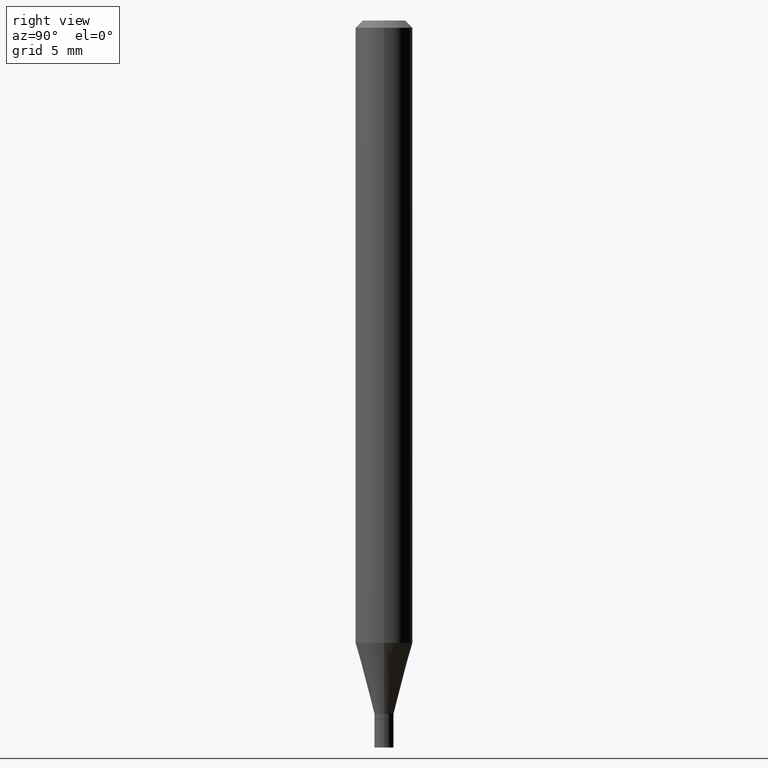
[diagram: clean part render]
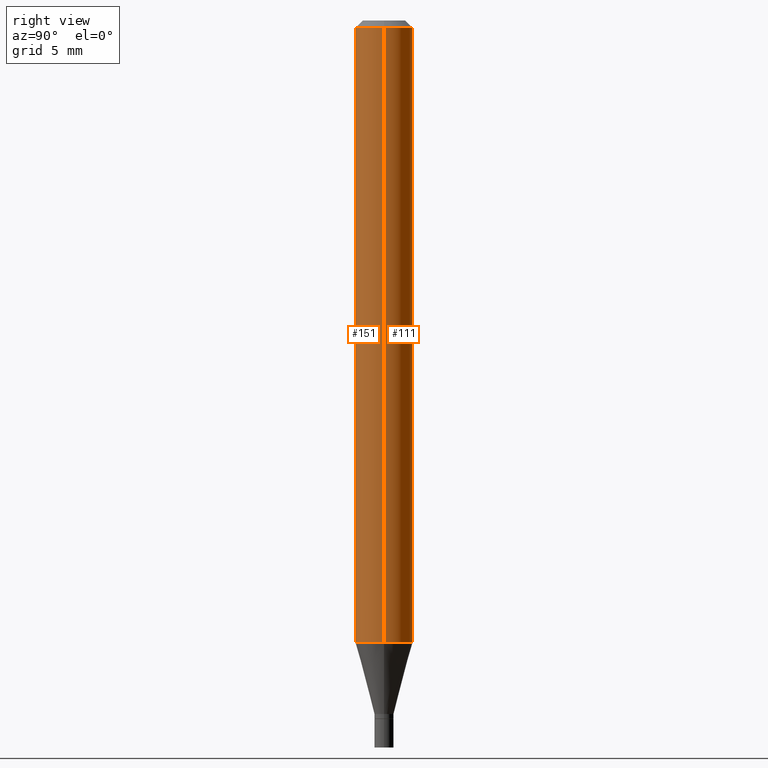
[diagram: same view with one multi-face feature highlighted, each face labeled with its STEP entity id]
A machine part, right view. The highlighted faces form ONE feature: a constant-radius fillet chain: 2 tangent blend faces with common blend radius 1.4999 mm. The faces share edges in the B-rep.
Their STEP definitions:
[1] entity #111 (Cylinder):
#26 = VERTEX_POINT ( 'NONE', #145 ) ;
#39 = EDGE_CURVE ( 'NONE', #431, #216, #379, .T. ) ;
#41 = DIRECTION ( 'NONE',  ( 1.000000000000000000, -6.982962677686273021E-15, 0.000000000000000000 ) ) ;
#60 = ORIENTED_EDGE ( 'NONE', *, *, #39, .T. ) ;
#62 = CARTESIAN_POINT ( 'NONE',  ( -0.05904999999999999832, -4.063639483012322948E-15, -1.284043800722163953 ) ) ;
#63 = CARTESIAN_POINT ( 'NONE',  ( 0.05904999999999999832, -4.895558914596035784E-15, -1.284043800722163953 ) ) ;
#71 = ORIENTED_EDGE ( 'NONE', *, *, #260, .T. ) ;
#72 = DIRECTION ( 'NONE',  ( -2.445468806185136877E-29, 3.491481338843145188E-15, 1.000000000000000000 ) ) ;
#97 = ORIENTED_EDGE ( 'NONE', *, *, #269, .F. ) ;
#105 = ORIENTED_EDGE ( 'NONE', *, *, #425, .F. ) ;
#111 = ADVANCED_FACE ( 'NONE', ( #441 ), #186, .T. ) ;
#116 = CARTESIAN_POINT ( 'NONE',  ( 0.000000000000000000, 0.000000000000000000, 0.000000000000000000 ) ) ;
#137 = VERTEX_POINT ( 'NONE', #257 ) ;
#145 = CARTESIAN_POINT ( 'NONE',  ( -0.05904999999999999832, -1.848218108814315465E-15, -0.01499999999999999944 ) ) ;
#170 = AXIS2_PLACEMENT_3D ( 'NONE', #222, #327, #41 ) ;
#184 = DIRECTION ( 'NONE',  ( -2.445468806185136597E-29, 3.491481338843145583E-15, 1.000000000000000000 ) ) ;
#186 = CYLINDRICAL_SURFACE ( 'NONE', #437, 0.05904999999999999832 ) ;
#195 = CARTESIAN_POINT ( 'NONE',  ( -0.05904999999999999832, 4.195754854663391478E-16, -2.904631170795521892E-30 ) ) ;
#197 = VECTOR ( 'NONE', #72, 39.37007874015748143 ) ;
#216 = VERTEX_POINT ( 'NONE', #62 ) ;
#222 = CARTESIAN_POINT ( 'NONE',  ( 3.140089060441456086E-29, -4.483214968478662441E-15, -1.284043800722163953 ) ) ;
#225 = DIRECTION ( 'NONE',  ( 1.000000000000000000, -6.982962677686266711E-15, 4.876176775795936353E-29 ) ) ;
#234 = AXIS2_PLACEMENT_3D ( 'NONE', #268, #382, #308 ) ;
#244 = EDGE_LOOP ( 'NONE', ( #60, #71, #97, #105 ) ) ;
#257 = CARTESIAN_POINT ( 'NONE',  ( 0.05904999999999999832, -4.647161662000212105E-16, -0.01499999999999999944 ) ) ;
#260 = EDGE_CURVE ( 'NONE', #216, #26, #418, .T. ) ;
#268 = CARTESIAN_POINT ( 'NONE',  ( 3.668203209277705088E-31, -5.237222008264718399E-17, -0.01499999999999999944 ) ) ;
#269 = EDGE_CURVE ( 'NONE', #137, #26, #380, .T. ) ;
#308 = DIRECTION ( 'NONE',  ( 1.000000000000000000, -6.982962677686266711E-15, 0.000000000000000000 ) ) ;
#327 = DIRECTION ( 'NONE',  ( -2.445468806185136597E-29, 3.491481338843145583E-15, 1.000000000000000000 ) ) ;
#350 = CARTESIAN_POINT ( 'NONE',  ( 0.05904999999999999832, -4.123439461173740327E-16, 2.879382386107500220E-30 ) ) ;
#359 = LINE ( 'NONE', #350, #197 ) ;
#379 = CIRCLE ( 'NONE', #170, 0.05904999999999999832 ) ;
#380 = CIRCLE ( 'NONE', #234, 0.05904999999999999832 ) ;
#382 = DIRECTION ( 'NONE',  ( -2.445468806185136597E-29, 3.491481338843145583E-15, 1.000000000000000000 ) ) ;
#387 = VECTOR ( 'NONE', #416, 39.37007874015748143 ) ;
#416 = DIRECTION ( 'NONE',  ( -2.445468806185136877E-29, 3.491481338843145188E-15, 1.000000000000000000 ) ) ;
#418 = LINE ( 'NONE', #195, #387 ) ;
#425 = EDGE_CURVE ( 'NONE', #431, #137, #359, .T. ) ;
#431 = VERTEX_POINT ( 'NONE', #63 ) ;
#437 = AXIS2_PLACEMENT_3D ( 'NONE', #116, #184, #225 ) ;
#441 = FACE_OUTER_BOUND ( 'NONE', #244, .T. ) ;
[2] entity #151 (Cylinder):
#1 = EDGE_CURVE ( 'NONE', #26, #137, #103, .T. ) ;
#24 = EDGE_CURVE ( 'NONE', #216, #431, #444, .T. ) ;
#26 = VERTEX_POINT ( 'NONE', #145 ) ;
#31 = ORIENTED_EDGE ( 'NONE', *, *, #425, .T. ) ;
#51 = CARTESIAN_POINT ( 'NONE',  ( 0.000000000000000000, 0.000000000000000000, 0.000000000000000000 ) ) ;
#61 = AXIS2_PLACEMENT_3D ( 'NONE', #84, #223, #80 ) ;
#62 = CARTESIAN_POINT ( 'NONE',  ( -0.05904999999999999832, -4.063639483012322948E-15, -1.284043800722163953 ) ) ;
#63 = CARTESIAN_POINT ( 'NONE',  ( 0.05904999999999999832, -4.895558914596035784E-15, -1.284043800722163953 ) ) ;
#72 = DIRECTION ( 'NONE',  ( -2.445468806185136877E-29, 3.491481338843145188E-15, 1.000000000000000000 ) ) ;
#78 = CYLINDRICAL_SURFACE ( 'NONE', #119, 0.05904999999999999832 ) ;
#80 = DIRECTION ( 'NONE',  ( 1.000000000000000000, -6.982962677686266711E-15, 0.000000000000000000 ) ) ;
#84 = CARTESIAN_POINT ( 'NONE',  ( 3.668203209277705088E-31, -5.237222008264718399E-17, -0.01499999999999999944 ) ) ;
#103 = CIRCLE ( 'NONE', #61, 0.05904999999999999832 ) ;
#119 = AXIS2_PLACEMENT_3D ( 'NONE', #51, #194, #231 ) ;
#137 = VERTEX_POINT ( 'NONE', #257 ) ;
#145 = CARTESIAN_POINT ( 'NONE',  ( -0.05904999999999999832, -1.848218108814315465E-15, -0.01499999999999999944 ) ) ;
#151 = ADVANCED_FACE ( 'NONE', ( #406 ), #78, .T. ) ;
#194 = DIRECTION ( 'NONE',  ( -2.445468806185136597E-29, 3.491481338843145583E-15, 1.000000000000000000 ) ) ;
#195 = CARTESIAN_POINT ( 'NONE',  ( -0.05904999999999999832, 4.195754854663391478E-16, -2.904631170795521892E-30 ) ) ;
#197 = VECTOR ( 'NONE', #72, 39.37007874015748143 ) ;
#216 = VERTEX_POINT ( 'NONE', #62 ) ;
#223 = DIRECTION ( 'NONE',  ( -2.445468806185136597E-29, 3.491481338843145583E-15, 1.000000000000000000 ) ) ;
#231 = DIRECTION ( 'NONE',  ( 1.000000000000000000, -6.982962677686266711E-15, 4.876176775795936353E-29 ) ) ;
#247 = AXIS2_PLACEMENT_3D ( 'NONE', #364, #446, #373 ) ;
#257 = CARTESIAN_POINT ( 'NONE',  ( 0.05904999999999999832, -4.647161662000212105E-16, -0.01499999999999999944 ) ) ;
#260 = EDGE_CURVE ( 'NONE', #216, #26, #418, .T. ) ;
#322 = ORIENTED_EDGE ( 'NONE', *, *, #1, .F. ) ;
#346 = ORIENTED_EDGE ( 'NONE', *, *, #24, .T. ) ;
#349 = EDGE_LOOP ( 'NONE', ( #433, #346, #31, #322 ) ) ;
#350 = CARTESIAN_POINT ( 'NONE',  ( 0.05904999999999999832, -4.123439461173740327E-16, 2.879382386107500220E-30 ) ) ;
#359 = LINE ( 'NONE', #350, #197 ) ;
#364 = CARTESIAN_POINT ( 'NONE',  ( 3.140089060441456086E-29, -4.483214968478662441E-15, -1.284043800722163953 ) ) ;
#373 = DIRECTION ( 'NONE',  ( 1.000000000000000000, -6.982962677686273021E-15, 0.000000000000000000 ) ) ;
#387 = VECTOR ( 'NONE', #416, 39.37007874015748143 ) ;
#406 = FACE_OUTER_BOUND ( 'NONE', #349, .T. ) ;
#416 = DIRECTION ( 'NONE',  ( -2.445468806185136877E-29, 3.491481338843145188E-15, 1.000000000000000000 ) ) ;
#418 = LINE ( 'NONE', #195, #387 ) ;
#425 = EDGE_CURVE ( 'NONE', #431, #137, #359, .T. ) ;
#431 = VERTEX_POINT ( 'NONE', #63 ) ;
#433 = ORIENTED_EDGE ( 'NONE', *, *, #260, .F. ) ;
#444 = CIRCLE ( 'NONE', #247, 0.05904999999999999832 ) ;
#446 = DIRECTION ( 'NONE',  ( -2.445468806185136597E-29, 3.491481338843145583E-15, 1.000000000000000000 ) ) ;